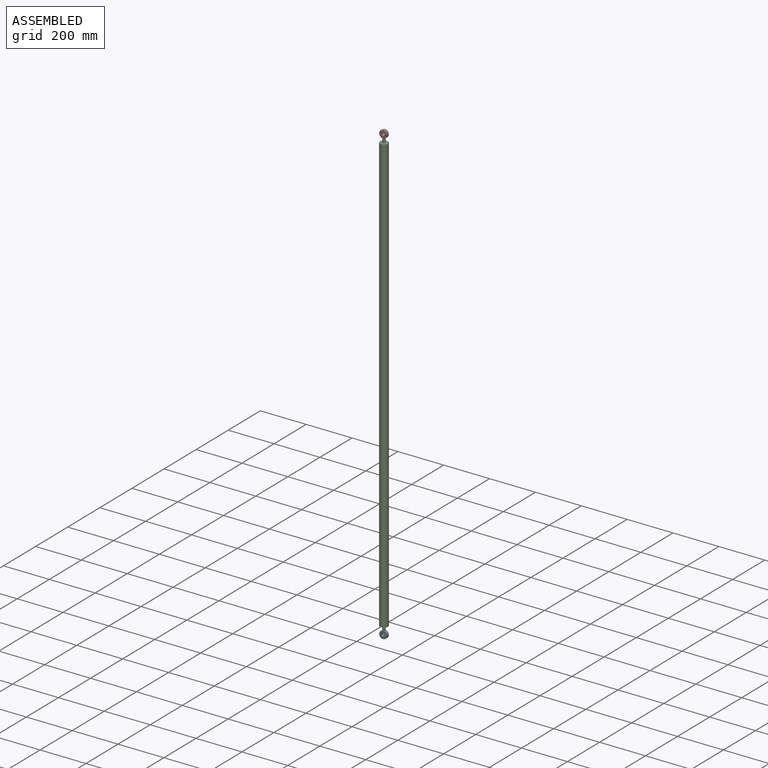
[diagram: assembled view]
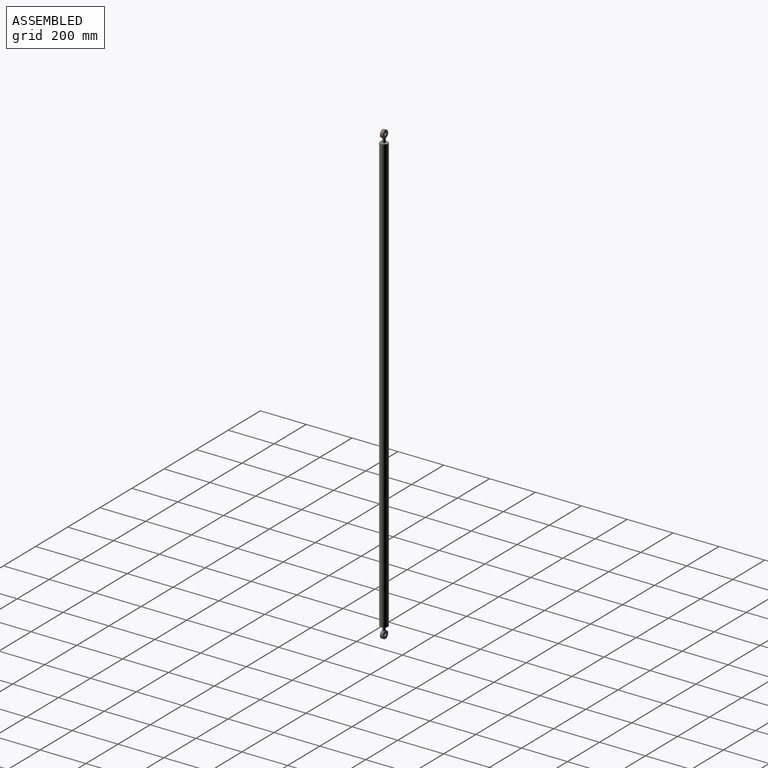
[diagram: assembled view, second angle]
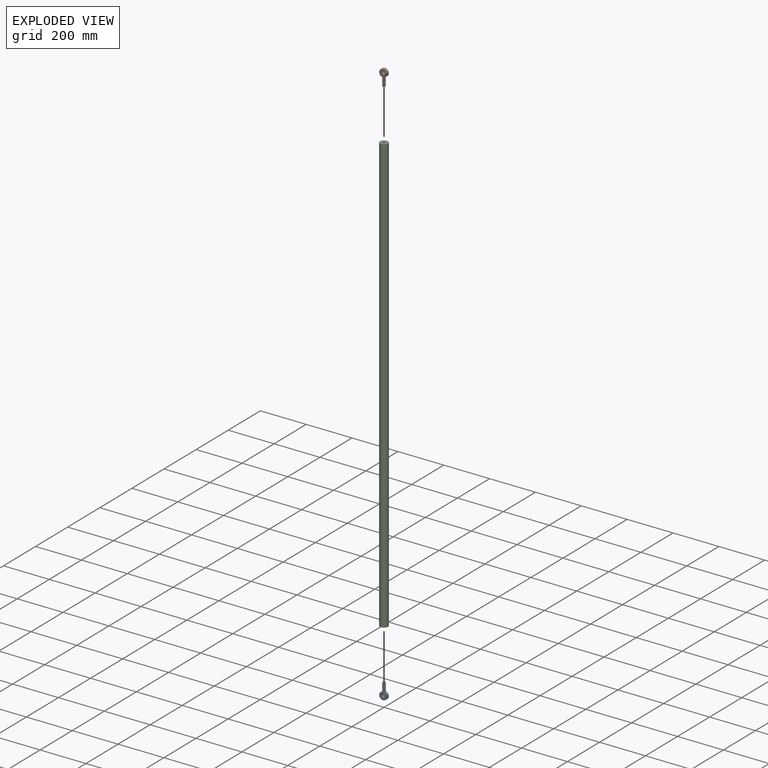
[diagram: exploded view]
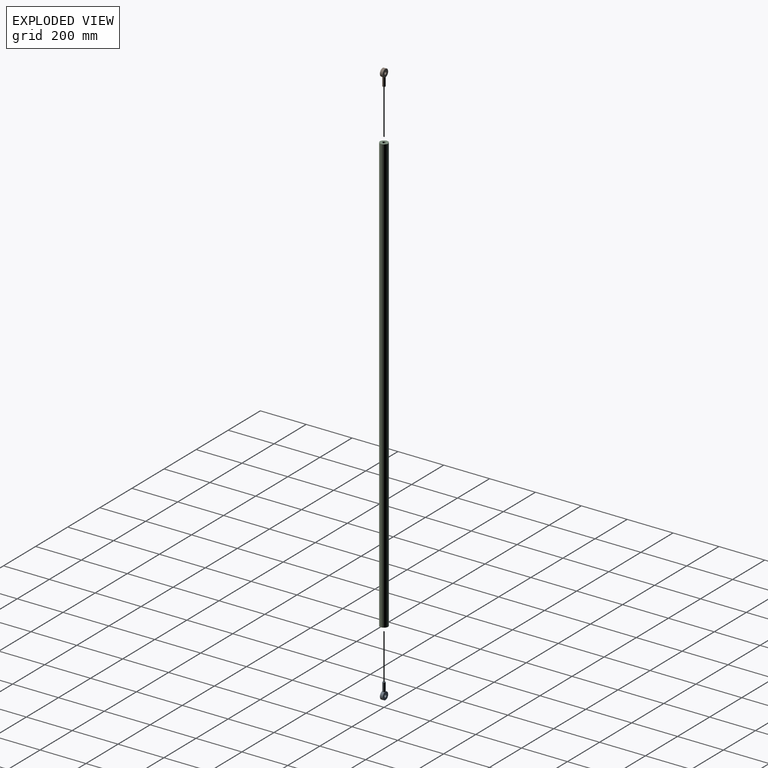
[diagram: exploded view, second angle]
ASSEMBLY  parts=3 mates=2
PART A: 6 faces, bbox 33.3x70.2x12.7 mm
  f0: cylinder r=16.67mm len=33.34mm, axis (0,0,-1), area 1201mm2, adj f3,f4,f5
  f1: plane 12.7x12.7mm, normal (0,-1,0), area 126.7mm2, adj f5
  f2: cylinder r=6.35mm len=12.7mm, axis (0,0,-1), area 506.7mm2, adj f3,f4
  f3: plane 33.34x33.34mm, normal (0,0,1), area 746.2mm2, adj f0,f2
  f4: plane 33.34x33.34mm, normal (0,0,-1), area 746.2mm2, adj f0,f2
  f5: cylinder r=6.35mm len=38.1mm, axis (0,-1,0), area 1494.8mm2, adj f0,f1
PART B: same geometry as A
PART C: 4 faces, bbox 35.1x1905x35.1 mm
  f0: cylinder r=6.35mm len=1905mm, axis (0,1,0), area 76006.1mm2, adj f2,f3
  f1: cylinder r=17.53mm len=1905mm, axis (0,1,0), area 209798.5mm2, adj f2,f3
  f2: plane 35.06x35.06mm, normal (0,-1,0), area 838.5mm2, adj f0,f1
  f3: plane 35.06x35.06mm, normal (0,1,0), area 838.5mm2, adj f0,f1
PLACE A rot(axis=(0,-0.71,0.71),180deg) t=(0,0,-941.66)mm
PLACE B rot(axis=(0,0.71,0.71),180deg) t=(0,0,1032.04)mm
PLACE C rot(axis=(-1,0,0),90deg) t=(0,0,-907.31)mm fixed
MATE revolute A.f5 <-> C.f0  axis (0,0,1) through (0,0,-907.31)mm
MATE revolute B.f5 <-> C.f1  axis (0,0,-1) through (0,0,997.69)mm
